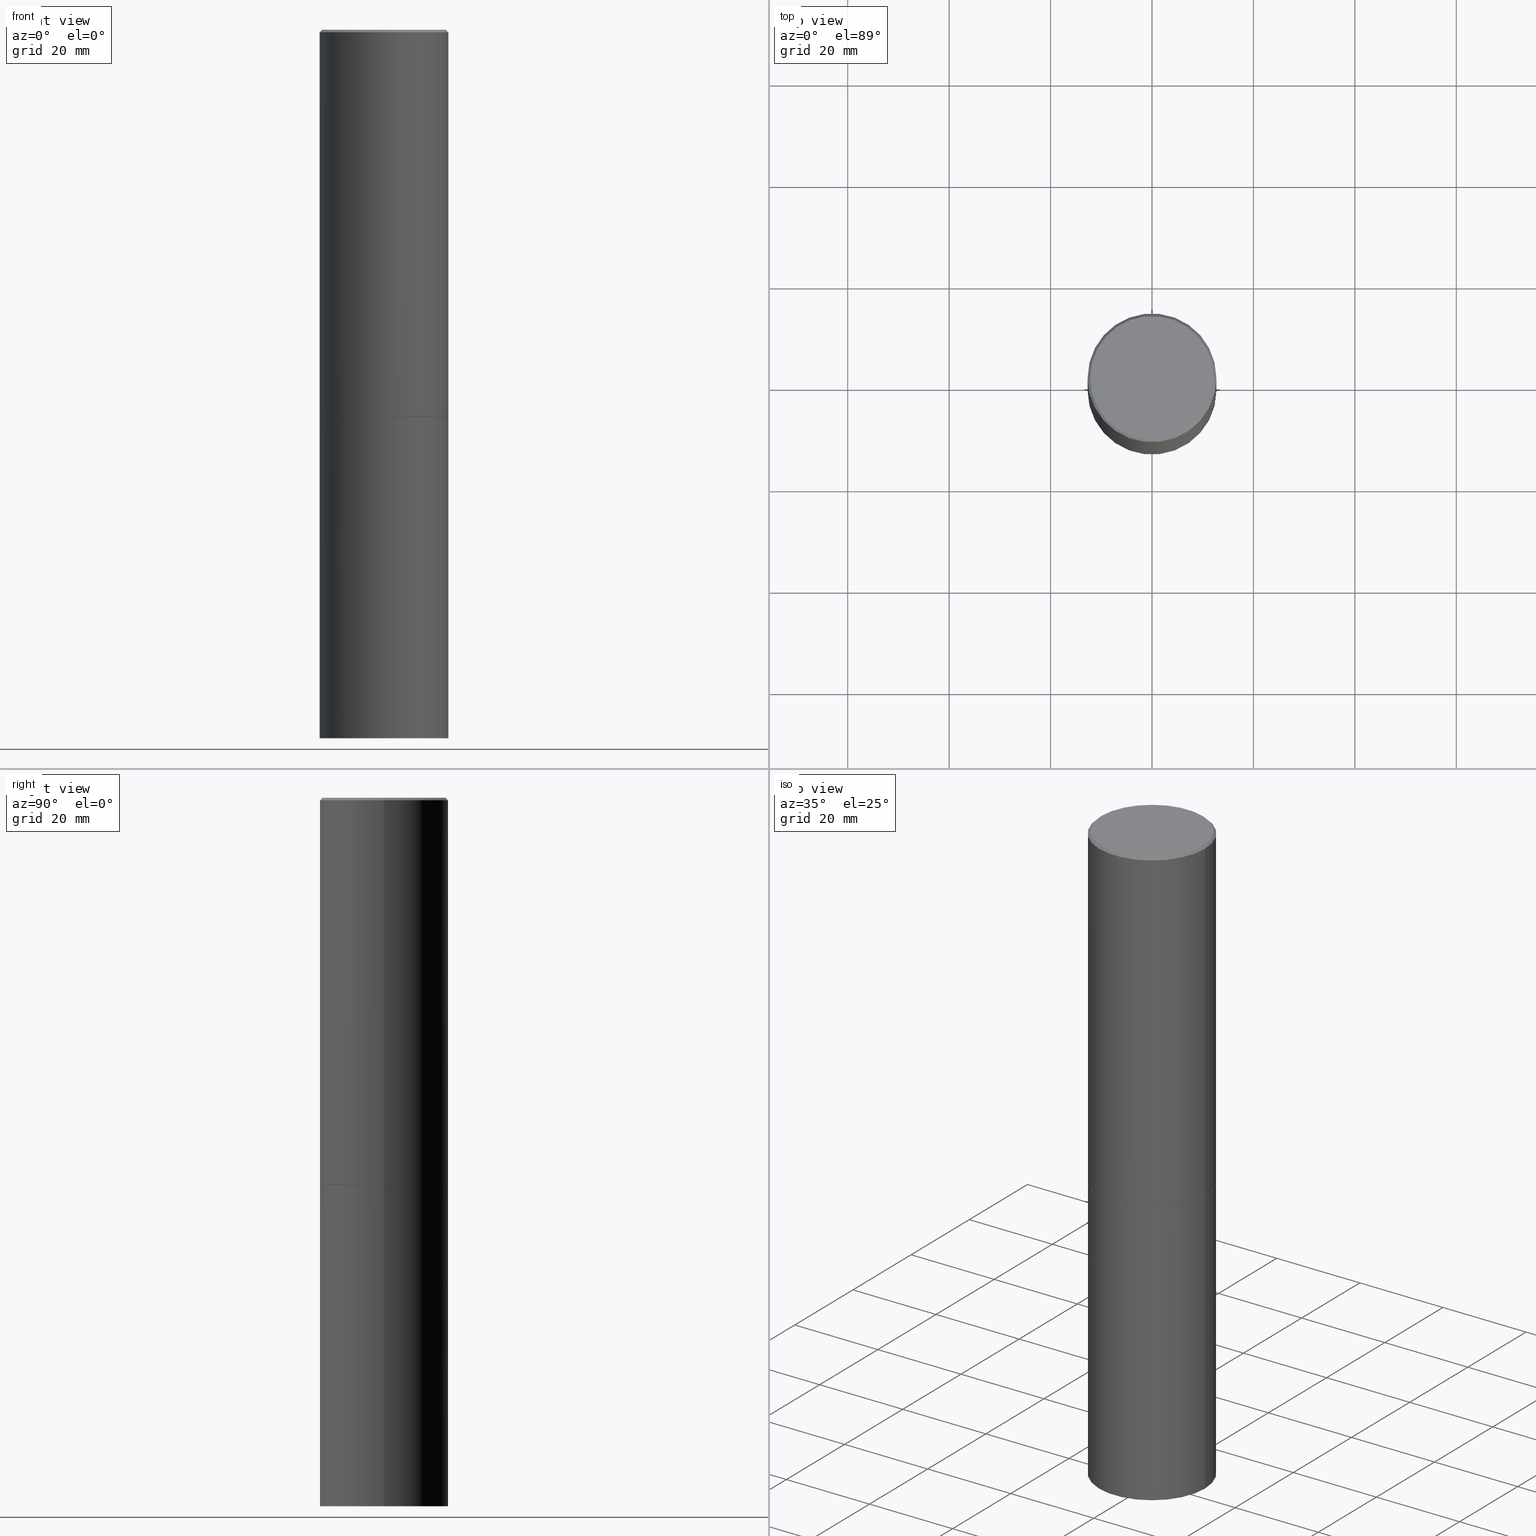
[diagram: canonical four-view strip — front | top / right | iso, engineering-drawing reading convention]
A machine part, canonical four-view strip (front | top / right | iso — engineering-drawing reading convention). The complete STEP part file that produces these views, byte-faithful:
ISO-10303-21;
HEADER;
FILE_DESCRIPTION (( 'STEP AP203' ),
    '1' );
FILE_NAME ('77461.STEP',
    '2024-05-03T15:07:08',
    ( '' ),
    ( '' ),
    'SwSTEP 2.0',
    'SolidWorks 2023',
    '' );
FILE_SCHEMA (( 'CONFIG_CONTROL_DESIGN' ));
ENDSEC;

DATA;
#1 = APPLICATION_CONTEXT ( 'configuration controlled 3d designs of mechanical parts and assemblies' ) ;
#2 = MANIFOLD_SOLID_BREP ( 'Body-Move/Copy2[1]', #17 ) ;
#3 = APPROVAL_DATE_TIME ( #140, #156 ) ;
#4 = ORIENTED_EDGE ( 'NONE', *, *, #120, .F. ) ;
#5 = EDGE_CURVE ( 'NONE', #313, #55, #286, .T. ) ;
#6 = ORIENTED_EDGE ( 'NONE', *, *, #277, .T. ) ;
#7 = AXIS2_PLACEMENT_3D ( 'NONE', #135, #247, #75 ) ;
#8 = VERTEX_POINT ( 'NONE', #124 ) ;
#9 = DIRECTION ( 'NONE',  ( 1.000000000000000000, -6.982962677686266711E-15, 4.876176775795935793E-29 ) ) ;
#10 = DIRECTION ( 'NONE',  ( 1.000000000000000000, -6.982962677686262766E-15, 0.000000000000000000 ) ) ;
#11 = CARTESIAN_POINT ( 'NONE',  ( 7.336406418555408669E-29, -1.047444401652943478E-14, -2.999999999999999556 ) ) ;
#12 = CC_DESIGN_PERSON_AND_ORGANIZATION_ASSIGNMENT ( #158, #190, ( #53 ) ) ;
#13 = LOCAL_TIME ( 11, 7, 8.000000000000000000, #150 ) ;
#14 = DIRECTION ( 'NONE',  ( -2.445468806185136597E-29, 3.491481338843145583E-15, 1.000000000000000000 ) ) ;
#15 = FACE_OUTER_BOUND ( 'NONE', #115, .T. ) ;
#16 = ADVANCED_FACE ( 'NONE', ( #239 ), #212, .F. ) ;
#17 = CLOSED_SHELL ( 'NONE', ( #162, #249, #242, #175 ) ) ;
#18 = DIRECTION ( 'NONE',  ( 1.000000000000000000, -6.982962677686265922E-15, 4.876176775795935793E-29 ) ) ;
#19 = CONICAL_SURFACE ( 'NONE', #363, 0.4989999999999999991, 0.7853981633978239785 ) ;
#20 = APPROVAL_PERSON_ORGANIZATION ( #37, #223, #153 ) ;
#21 = CC_DESIGN_PERSON_AND_ORGANIZATION_ASSIGNMENT ( #307, #169, ( #227 ) ) ;
#22 = CARTESIAN_POINT ( 'NONE',  ( 0.5000000000000000000, -1.396592535537256813E-14, -2.999999999999999556 ) ) ;
#23 = VECTOR ( 'NONE', #32, 39.37007874015748854 ) ;
#24 = DIRECTION ( 'NONE',  ( 0.000000000000000000, 0.000000000000000000, 1.000000000000000000 ) ) ;
#25 = CALENDAR_DATE ( 2024, 3, 5 ) ;
#26 = ORIENTED_EDGE ( 'NONE', *, *, #310, .T. ) ;
#27 = CARTESIAN_POINT ( 'NONE',  ( -0.4999999999999998335, 3.552713678800499746E-15, -2.459467545127452330E-29 ) ) ;
#28 = EDGE_LOOP ( 'NONE', ( #318, #26, #116, #197 ) ) ;
#29 = VERTEX_POINT ( 'NONE', #67 ) ;
#30 = CIRCLE ( 'NONE', #305, 0.4999999999999997224 ) ;
#31 = ORIENTED_EDGE ( 'NONE', *, *, #63, .F. ) ;
#32 = DIRECTION ( 'NONE',  ( 0.7071067811868130271, -2.468850131085038979E-15, 0.7071067811862817853 ) ) ;
#33 = CARTESIAN_POINT ( 'NONE',  ( 7.336406418555408669E-29, -1.047444401652943478E-14, -2.999999999999999556 ) ) ;
#34 = EDGE_CURVE ( 'NONE', #259, #313, #110, .T. ) ;
#35 = DIRECTION ( 'NONE',  ( 2.445468806185136597E-29, -3.491481338843145583E-15, -1.000000000000000000 ) ) ;
#36 = COORDINATED_UNIVERSAL_TIME_OFFSET ( 5, 0, .BEHIND. ) ;
#37 = PERSON_AND_ORGANIZATION ( #74, #278 ) ;
#38 = EDGE_CURVE ( 'NONE', #145, #359, #78, .T. ) ;
#39 =( CONVERSION_BASED_UNIT ( 'INCH', #322 ) LENGTH_UNIT ( ) NAMED_UNIT ( #42 ) );
#40 = COORDINATED_UNIVERSAL_TIME_OFFSET ( 5, 0, .BEHIND. ) ;
#41 = DATE_AND_TIME ( #25, #13 ) ;
#42 = DIMENSIONAL_EXPONENTS ( 1.000000000000000000, 0.000000000000000000, 0.000000000000000000, 0.000000000000000000, 0.000000000000000000, 0.000000000000000000, 0.000000000000000000 ) ;
#43 = PERSON_AND_ORGANIZATION_ROLE ( 'creator' ) ;
#44 = CIRCLE ( 'NONE', #137, 0.5000000000000000000 ) ;
#45 = DIRECTION ( 'NONE',  ( 1.000000000000000000, -6.982962677686266711E-15, 0.000000000000000000 ) ) ;
#46 = EDGE_LOOP ( 'NONE', ( #260, #4 ) ) ;
#47 = CC_DESIGN_PERSON_AND_ORGANIZATION_ASSIGNMENT ( #71, #358, ( #287 ) ) ;
#48 = EDGE_LOOP ( 'NONE', ( #6, #225, #342, #79 ) ) ;
#49 = ORIENTED_EDGE ( 'NONE', *, *, #291, .T. ) ;
#50 = ADVANCED_FACE ( 'NONE', ( #269 ), #301, .F. ) ;
#51 = CARTESIAN_POINT ( 'NONE',  ( 7.336406418555408669E-29, -1.047444401652943478E-14, -2.999999999999999556 ) ) ;
#52 = ORIENTED_EDGE ( 'NONE', *, *, #180, .F. ) ;
#53 = SECURITY_CLASSIFICATION ( '', '', #270 ) ;
#54 = DIRECTION ( 'NONE',  ( -2.445468806185136877E-29, 3.491481338843145188E-15, 1.000000000000000000 ) ) ;
#55 = VERTEX_POINT ( 'NONE', #272 ) ;
#56 = APPLICATION_CONTEXT ( 'configuration controlled 3d designs of mechanical parts and assemblies' ) ;
#57 = FACE_OUTER_BOUND ( 'NONE', #204, .T. ) ;
#58 = CARTESIAN_POINT ( 'NONE',  ( -0.4999999999999997224, 3.421651712066268085E-15, -0.02000000000000013572 ) ) ;
#59 = VERTEX_POINT ( 'NONE', #187 ) ;
#60 = FACE_OUTER_BOUND ( 'NONE', #106, .T. ) ;
#61 = AXIS2_PLACEMENT_3D ( 'NONE', #161, #132, #73 ) ;
#62 = AXIS2_PLACEMENT_3D ( 'NONE', #177, #179, #284 ) ;
#63 = EDGE_CURVE ( 'NONE', #259, #123, #171, .T. ) ;
#64 = ORIENTED_EDGE ( 'NONE', *, *, #149, .T. ) ;
#65 = DIRECTION ( 'NONE',  ( 1.000000000000000000, -6.982962677686262766E-15, 0.000000000000000000 ) ) ;
#66 = ADVANCED_FACE ( 'NONE', ( #365 ), #163, .T. ) ;
#67 = CARTESIAN_POINT ( 'NONE',  ( -0.4989999999999999991, -6.923537310738314819E-15, -2.999999999999999556 ) ) ;
#68 = FACE_OUTER_BOUND ( 'NONE', #288, .T. ) ;
#69 = CIRCLE ( 'NONE', #152, 0.4799999999999995937 ) ;
#70 = AXIS2_PLACEMENT_3D ( 'NONE', #360, #221, #189 ) ;
#71 = PERSON_AND_ORGANIZATION ( #74, #278 ) ;
#72 = CARTESIAN_POINT ( 'NONE',  ( -0.5000000000000000000, 3.552713678800500929E-15, -2.459467545127452891E-29 ) ) ;
#73 = DIRECTION ( 'NONE',  ( -1.000000000000000000, 6.982962677686265922E-15, -4.876176775795935793E-29 ) ) ;
#74 = PERSON ( 'UNSPECIFIED', 'UNSPECIFIED', 'UNSPECIFIED', ('UNSPECIFIED'), ('UNSPECIFIED'), ('UNSPECIFIED') ) ;
#75 = DIRECTION ( 'NONE',  ( -1.000000000000000000, 6.982962677686265922E-15, -4.876176775795935793E-29 ) ) ;
#76 = DIRECTION ( 'NONE',  ( -2.445468806185136597E-29, 3.491481338843145583E-15, 1.000000000000000000 ) ) ;
#77 = AXIS2_PLACEMENT_3D ( 'NONE', #82, #330, #198 ) ;
#78 = LINE ( 'NONE', #155, #141 ) ;
#79 = ORIENTED_EDGE ( 'NONE', *, *, #149, .F. ) ;
#80 = ORIENTED_EDGE ( 'NONE', *, *, #194, .T. ) ;
#81 = PLANE ( 'NONE',  #70 ) ;
#82 = CARTESIAN_POINT ( 'NONE',  ( 0.000000000000000000, 0.000000000000000000, 0.000000000000000000 ) ) ;
#83 = FACE_OUTER_BOUND ( 'NONE', #95, .T. ) ;
#84 =( NAMED_UNIT ( * ) PLANE_ANGLE_UNIT ( ) SI_UNIT ( $, .RADIAN. ) );
#85 = DIRECTION ( 'NONE',  ( 2.445468806185136597E-29, -3.491481338843145583E-15, -1.000000000000000000 ) ) ;
#86 = ORIENTED_EDGE ( 'NONE', *, *, #180, .T. ) ;
#87 = ORIENTED_EDGE ( 'NONE', *, *, #127, .F. ) ;
#88 = AXIS2_PLACEMENT_3D ( 'NONE', #237, #347, #210 ) ;
#89 = ORIENTED_EDGE ( 'NONE', *, *, #134, .F. ) ;
#90 = EDGE_LOOP ( 'NONE', ( #87, #97, #49, #348 ) ) ;
#91 = DIRECTION ( 'NONE',  ( 1.000000000000000000, -6.982962677686266711E-15, 4.876176775795935793E-29 ) ) ;
#92 = ORIENTED_EDGE ( 'NONE', *, *, #303, .F. ) ;
#93 = DIRECTION ( 'NONE',  ( 1.000000000000000000, -6.982962677686266711E-15, 4.876036955247133327E-29 ) ) ;
#94 = DIRECTION ( 'NONE',  ( 1.000000000000000000, -6.982962677686266711E-15, 0.000000000000000000 ) ) ;
#95 = EDGE_LOOP ( 'NONE', ( #254, #232, #64, #255 ) ) ;
#96 = CARTESIAN_POINT ( 'NONE',  ( 0.4999999999999998335, -3.491481338843132566E-15, 2.438088387897967336E-29 ) ) ;
#97 = ORIENTED_EDGE ( 'NONE', *, *, #134, .T. ) ;
#98 = CARTESIAN_POINT ( 'NONE',  ( -3.131554243005659264E-46, 4.471029511141341874E-32, 1.280553747030123384E-17 ) ) ;
#99 = DIRECTION ( 'NONE',  ( -2.445468806185136597E-29, 3.491481338843145583E-15, 1.000000000000000000 ) ) ;
#100 = ORIENTED_EDGE ( 'NONE', *, *, #273, .T. ) ;
#101 = VECTOR ( 'NONE', #122, 39.37007874015748143 ) ;
#102 = DIRECTION ( 'NONE',  ( -2.445468806185136597E-29, 3.491481338843145583E-15, 1.000000000000000000 ) ) ;
#103 = EDGE_CURVE ( 'NONE', #59, #359, #312, .T. ) ;
#104 = DIRECTION ( 'NONE',  ( -2.445468806185136597E-29, 3.491481338843145583E-15, 1.000000000000000000 ) ) ;
#105 = DIRECTION ( 'NONE',  ( -0.7071067811865471286, 2.468850131082252722E-15, -0.7071067811865479058 ) ) ;
#106 = EDGE_LOOP ( 'NONE', ( #80, #100, #52, #211 ) ) ;
#107 = ORIENTED_EDGE ( 'NONE', *, *, #103, .T. ) ;
#108 = APPROVAL_STATUS ( 'not_yet_approved' ) ;
#109 = EDGE_CURVE ( 'NONE', #29, #111, #139, .T. ) ;
#110 = LINE ( 'NONE', #295, #321 ) ;
#111 = VERTEX_POINT ( 'NONE', #334 ) ;
#112 = ADVANCED_FACE ( 'NONE', ( #83 ), #19, .T. ) ;
#113 = AXIS2_PLACEMENT_3D ( 'NONE', #157, #304, #167 ) ;
#114 = FACE_OUTER_BOUND ( 'NONE', #48, .T. ) ;
#115 = EDGE_LOOP ( 'NONE', ( #257, #281, #340, #176 ) ) ;
#116 = ORIENTED_EDGE ( 'NONE', *, *, #329, .T. ) ;
#117 =( GEOMETRIC_REPRESENTATION_CONTEXT ( 3 ) GLOBAL_UNCERTAINTY_ASSIGNED_CONTEXT ( ( #274 ) ) GLOBAL_UNIT_ASSIGNED_CONTEXT ( ( #39, #84, #203 ) ) REPRESENTATION_CONTEXT ( 'NONE', 'WORKASPACE' ) );
#118 = DATE_AND_TIME ( #292, #178 ) ;
#119 = CALENDAR_DATE ( 2024, 3, 5 ) ;
#120 = EDGE_CURVE ( 'NONE', #29, #8, #125, .T. ) ;
#121 = DIRECTION ( 'NONE',  ( 1.000000000000000000, -6.982962677686269077E-15, 0.000000000000000000 ) ) ;
#122 = DIRECTION ( 'NONE',  ( -2.445468806185136877E-29, 3.491481338843145188E-15, 1.000000000000000000 ) ) ;
#123 = VERTEX_POINT ( 'NONE', #240 ) ;
#124 = CARTESIAN_POINT ( 'NONE',  ( 0.4989999999999999991, -1.395894239269488369E-14, -2.999999999999999556 ) ) ;
#125 = CIRCLE ( 'NONE', #192, 0.4989999999999999991 ) ;
#126 = APPROVAL_PERSON_ORGANIZATION ( #164, #156, #128 ) ;
#127 = EDGE_CURVE ( 'NONE', #123, #259, #69, .T. ) ;
#128 = APPROVAL_ROLE ( '' ) ;
#129 = DIRECTION ( 'NONE',  ( -2.445468806185136597E-29, 3.491481338843145583E-15, 1.000000000000000000 ) ) ;
#130 = DIRECTION ( 'NONE',  ( 0.7071067811865471286, -7.319954787623254468E-15, -0.7071067811865479058 ) ) ;
#131 = APPROVAL_DATE_TIME ( #297, #263 ) ;
#132 = DIRECTION ( 'NONE',  ( 2.438088387897960049E-29, -3.491481338843145188E-15, -1.000000000000000000 ) ) ;
#133 = LOCAL_TIME ( 11, 7, 8.000000000000000000, #320 ) ;
#134 = EDGE_CURVE ( 'NONE', #123, #55, #319, .T. ) ;
#135 = CARTESIAN_POINT ( 'NONE',  ( 3.491481338843206325E-15, 0.4999999999999895639, -3.000000000000001332 ) ) ;
#136 = VECTOR ( 'NONE', #130, 39.37007874015748143 ) ;
#137 = AXIS2_PLACEMENT_3D ( 'NONE', #265, #14, #65 ) ;
#138 = CARTESIAN_POINT ( 'NONE',  ( 7.336406418555408669E-29, -1.047444401652943478E-14, -2.999999999999999556 ) ) ;
#139 = LINE ( 'NONE', #276, #243 ) ;
#140 = DATE_AND_TIME ( #119, #133 ) ;
#141 = VECTOR ( 'NONE', #195, 39.37007874015748143 ) ;
#142 = CIRCLE ( 'NONE', #88, 0.5000000000000000000 ) ;
#143 = DIRECTION ( 'NONE',  ( -2.445468806185136597E-29, 3.491481338843145583E-15, 1.000000000000000000 ) ) ;
#144 = COORDINATED_UNIVERSAL_TIME_OFFSET ( 5, 0, .BEHIND. ) ;
#145 = VERTEX_POINT ( 'NONE', #236 ) ;
#146 = EDGE_LOOP ( 'NONE', ( #345, #92 ) ) ;
#147 = CARTESIAN_POINT ( 'NONE',  ( 0.000000000000000000, 0.000000000000000000, 0.000000000000000000 ) ) ;
#148 = LINE ( 'NONE', #27, #101 ) ;
#149 = EDGE_CURVE ( 'NONE', #8, #290, #182, .T. ) ;
#150 = COORDINATED_UNIVERSAL_TIME_OFFSET ( 5, 0, .BEHIND. ) ;
#151 = DIRECTION ( 'NONE',  ( -1.000000000000000000, 6.982962677686266711E-15, 0.000000000000000000 ) ) ;
#152 = AXIS2_PLACEMENT_3D ( 'NONE', #98, #102, #93 ) ;
#153 = APPROVAL_ROLE ( '' ) ;
#154 = APPROVAL_STATUS ( 'not_yet_approved' ) ;
#155 = CARTESIAN_POINT ( 'NONE',  ( 0.5000000000000000000, -3.491481338843133355E-15, 2.438088387897967896E-29 ) ) ;
#156 = APPROVAL ( #154, 'UNSPECIFIED' ) ;
#157 = CARTESIAN_POINT ( 'NONE',  ( -3.131554243005659264E-46, 4.471029511141341874E-32, 1.280553747030123384E-17 ) ) ;
#158 = PERSON_AND_ORGANIZATION ( #74, #278 ) ;
#159 = AXIS2_PLACEMENT_3D ( 'NONE', #138, #200, #306 ) ;
#160 = CARTESIAN_POINT ( 'NONE',  ( -0.4799999999999995937, 3.386736898677836436E-15, 1.280553747027767124E-17 ) ) ;
#161 = CARTESIAN_POINT ( 'NONE',  ( 3.351822085289404787E-15, 0.4799999999999995937, -1.669508273909557867E-15 ) ) ;
#162 = ADVANCED_FACE ( 'NONE', ( #60 ), #289, .T. ) ;
#163 = CYLINDRICAL_SURFACE ( 'NONE', #77, 0.4999999999999998335 ) ;
#164 = PERSON_AND_ORGANIZATION ( #74, #278 ) ;
#165 = AXIS2_PLACEMENT_3D ( 'NONE', #231, #24, #256 ) ;
#166 = ADVANCED_FACE ( 'NONE', ( #68 ), #199, .T. ) ;
#167 = DIRECTION ( 'NONE',  ( 1.000000000000000000, -6.982962677686266711E-15, 4.876036955247133327E-29 ) ) ;
#168 = PRODUCT_RELATED_PRODUCT_CATEGORY ( 'detail', '', ( #362 ) ) ;
#169 = PERSON_AND_ORGANIZATION_ROLE ( 'creator' ) ;
#170 = DIRECTION ( 'NONE',  ( 1.000000000000000000, -6.982962677686269077E-15, 0.000000000000000000 ) ) ;
#171 = CIRCLE ( 'NONE', #113, 0.4799999999999995937 ) ;
#172 = CC_DESIGN_APPROVAL ( #263, ( #287 ) ) ;
#173 = DIRECTION ( 'NONE',  ( -1.000000000000000000, 6.982962677686266711E-15, 0.000000000000000000 ) ) ;
#174 = FACE_OUTER_BOUND ( 'NONE', #90, .T. ) ;
#175 = ADVANCED_FACE ( 'NONE', ( #15 ), #353, .T. ) ;
#176 = ORIENTED_EDGE ( 'NONE', *, *, #103, .F. ) ;
#177 = CARTESIAN_POINT ( 'NONE',  ( 0.000000000000000000, 0.000000000000000000, 0.000000000000000000 ) ) ;
#178 = LOCAL_TIME ( 11, 7, 8.000000000000000000, #36 ) ;
#179 = DIRECTION ( 'NONE',  ( -2.445468806185136597E-29, 3.491481338843145583E-15, 1.000000000000000000 ) ) ;
#180 = EDGE_CURVE ( 'NONE', #359, #59, #332, .T. ) ;
#181 = CARTESIAN_POINT ( 'NONE',  ( 4.890937612370306439E-31, -6.982962677686338448E-17, -0.02000000000000013572 ) ) ;
#182 = LINE ( 'NONE', #343, #23 ) ;
#183 = DIRECTION ( 'NONE',  ( -2.445468806185136597E-29, 3.491481338843145583E-15, 1.000000000000000000 ) ) ;
#184 = MECHANICAL_CONTEXT ( 'NONE', #1, 'mechanical' ) ;
#185 = LOCAL_TIME ( 11, 7, 8.000000000000000000, #144 ) ;
#186 = PERSON_AND_ORGANIZATION ( #74, #278 ) ;
#187 = CARTESIAN_POINT ( 'NONE',  ( -0.5000000000000000000, -1.128608201128286632E-14, -2.999999999999999556 ) ) ;
#188 = APPROVAL_ROLE ( '' ) ;
#189 = DIRECTION ( 'NONE',  ( -1.000000000000000000, 6.982962677686265922E-15, -4.876176775795935793E-29 ) ) ;
#190 = PERSON_AND_ORGANIZATION_ROLE ( 'classification_officer' ) ;
#191 = DIRECTION ( 'NONE',  ( 1.000000000000000000, -6.982962677686266711E-15, 0.000000000000000000 ) ) ;
#192 = AXIS2_PLACEMENT_3D ( 'NONE', #11, #346, #121 ) ;
#193 = AXIS2_PLACEMENT_3D ( 'NONE', #267, #129, #355 ) ;
#194 = EDGE_CURVE ( 'NONE', #145, #238, #245, .T. ) ;
#195 = DIRECTION ( 'NONE',  ( -2.445468806185136877E-29, 3.491481338843145188E-15, 1.000000000000000000 ) ) ;
#196 = APPLICATION_PROTOCOL_DEFINITION ( 'international standard', 'config_control_design', 1994, #56 ) ;
#197 = ORIENTED_EDGE ( 'NONE', *, *, #5, .F. ) ;
#198 = DIRECTION ( 'NONE',  ( 1.000000000000000000, -6.982962677686267499E-15, 4.876176775795936353E-29 ) ) ;
#199 = CONICAL_SURFACE ( 'NONE', #215, 0.4999999999999997224, 0.7853981633974477239 ) ;
#200 = DIRECTION ( 'NONE',  ( -2.445468806185136597E-29, 3.491481338843145583E-15, 1.000000000000000000 ) ) ;
#201 = EDGE_CURVE ( 'NONE', #111, #313, #148, .T. ) ;
#202 = CARTESIAN_POINT ( 'NONE',  ( 4.890937612370306439E-31, -6.982962677686338448E-17, -0.02000000000000013572 ) ) ;
#203 =( NAMED_UNIT ( * ) SI_UNIT ( $, .STERADIAN. ) SOLID_ANGLE_UNIT ( ) );
#204 = EDGE_LOOP ( 'NONE', ( #335, #315, #283, #207 ) ) ;
#205 = ADVANCED_FACE ( 'NONE', ( #57 ), #234, .T. ) ;
#206 = CARTESIAN_POINT ( 'NONE',  ( 1.345007843401824904E-28, -1.920314736363729972E-14, -5.500000000000000000 ) ) ;
#207 = ORIENTED_EDGE ( 'NONE', *, *, #329, .F. ) ;
#208 = DIRECTION ( 'NONE',  ( -2.445468806185136597E-29, 3.491481338843145583E-15, 1.000000000000000000 ) ) ;
#209 = AXIS2_PLACEMENT_3D ( 'NONE', #33, #99, #94 ) ;
#210 = DIRECTION ( 'NONE',  ( 1.000000000000000000, -6.982962677686266711E-15, 0.000000000000000000 ) ) ;
#211 = ORIENTED_EDGE ( 'NONE', *, *, #38, .F. ) ;
#212 = PLANE ( 'NONE',  #293 ) ;
#213 = FACE_OUTER_BOUND ( 'NONE', #309, .T. ) ;
#214 = PERSON_AND_ORGANIZATION ( #74, #278 ) ;
#215 = AXIS2_PLACEMENT_3D ( 'NONE', #181, #35, #151 ) ;
#216 = CC_DESIGN_APPROVAL ( #156, ( #227 ) ) ;
#217 = PLANE ( 'NONE',  #7 ) ;
#218 = CARTESIAN_POINT ( 'NONE',  ( 4.890937612370306439E-31, -6.982962677686338448E-17, -0.02000000000000013572 ) ) ;
#219 = APPROVAL_STATUS ( 'not_yet_approved' ) ;
#220 = EDGE_CURVE ( 'NONE', #290, #111, #142, .T. ) ;
#221 = DIRECTION ( 'NONE',  ( 2.438088387897960049E-29, -3.491481338843145188E-15, -1.000000000000000000 ) ) ;
#222 = AXIS2_PLACEMENT_3D ( 'NONE', #206, #208, #10 ) ;
#223 = APPROVAL ( #219, 'UNSPECIFIED' ) ;
#224 = PERSON_AND_ORGANIZATION_ROLE ( 'design_owner' ) ;
#225 = ORIENTED_EDGE ( 'NONE', *, *, #109, .T. ) ;
#226 = PRODUCT_DEFINITION_SHAPE ( 'NONE', 'NONE',  #227 ) ;
#227 = PRODUCT_DEFINITION ( 'UNKNOWN', '', #287, #228 ) ;
#228 = DESIGN_CONTEXT ( 'detailed design', #56, 'design' ) ;
#229 = DIRECTION ( 'NONE',  ( -0.7071067811868130271, 7.493145998871311837E-15, 0.7071067811862817853 ) ) ;
#230 = CARTESIAN_POINT ( 'NONE',  ( 4.890937612370306439E-31, -6.982962677686338448E-17, -0.02000000000000013572 ) ) ;
#231 = CARTESIAN_POINT ( 'NONE',  ( 0.000000000000000000, 0.000000000000000000, 0.000000000000000000 ) ) ;
#232 = ORIENTED_EDGE ( 'NONE', *, *, #120, .T. ) ;
#233 = CC_DESIGN_SECURITY_CLASSIFICATION ( #53, ( #287 ) ) ;
#234 = CYLINDRICAL_SURFACE ( 'NONE', #62, 0.4999999999999998335 ) ;
#235 = CARTESIAN_POINT ( 'NONE',  ( 7.333960949749226429E-29, -1.047095253519059492E-14, -2.999000000000000554 ) ) ;
#236 = CARTESIAN_POINT ( 'NONE',  ( 0.5000000000000000000, -2.269462870248043307E-14, -5.500000000000000000 ) ) ;
#237 = CARTESIAN_POINT ( 'NONE',  ( 7.333960949749226429E-29, -1.047095253519059492E-14, -2.999000000000000554 ) ) ;
#238 = VERTEX_POINT ( 'NONE', #351 ) ;
#239 = FACE_OUTER_BOUND ( 'NONE', #46, .T. ) ;
#240 = CARTESIAN_POINT ( 'NONE',  ( 0.4799999999999995937, -3.396558832296480127E-15, 1.280553747032483033E-17 ) ) ;
#241 = DATE_TIME_ROLE ( 'creation_date' ) ;
#242 = ADVANCED_FACE ( 'NONE', ( #213 ), #217, .F. ) ;
#243 = VECTOR ( 'NONE', #229, 39.37007874015748854 ) ;
#244 = CALENDAR_DATE ( 2024, 3, 5 ) ;
#245 = CIRCLE ( 'NONE', #222, 0.5000000000000000000 ) ;
#246 = CARTESIAN_POINT ( 'NONE',  ( 7.336406418555408669E-29, -1.047444401652943478E-14, -2.999999999999999556 ) ) ;
#247 = DIRECTION ( 'NONE',  ( 2.438088387897960049E-29, -3.491481338843145188E-15, -1.000000000000000000 ) ) ;
#248 = MANIFOLD_SOLID_BREP ( 'Body-Move/Copy2[2]', #264 ) ;
#249 = ADVANCED_FACE ( 'NONE', ( #364 ), #81, .T. ) ;
#250 = ORIENTED_EDGE ( 'NONE', *, *, #63, .T. ) ;
#251 = DIRECTION ( 'NONE',  ( -2.445468806185136597E-29, 3.491481338843145583E-15, 1.000000000000000000 ) ) ;
#252 = VECTOR ( 'NONE', #300, 39.37007874015748143 ) ;
#253 = DIRECTION ( 'NONE',  ( -2.438088387897960049E-29, 3.491481338843145188E-15, 1.000000000000000000 ) ) ;
#254 = ORIENTED_EDGE ( 'NONE', *, *, #109, .F. ) ;
#255 = ORIENTED_EDGE ( 'NONE', *, *, #310, .F. ) ;
#256 = DIRECTION ( 'NONE',  ( 1.000000000000000000, 0.000000000000000000, 0.000000000000000000 ) ) ;
#257 = ORIENTED_EDGE ( 'NONE', *, *, #273, .F. ) ;
#258 = CC_DESIGN_DATE_AND_TIME_ASSIGNMENT ( #118, #352, ( #53 ) ) ;
#259 = VERTEX_POINT ( 'NONE', #160 ) ;
#260 = ORIENTED_EDGE ( 'NONE', *, *, #277, .F. ) ;
#261 = DATE_AND_TIME ( #354, #266 ) ;
#262 = CC_DESIGN_APPROVAL ( #223, ( #53 ) ) ;
#263 = APPROVAL ( #108, 'UNSPECIFIED' ) ;
#264 = CLOSED_SHELL ( 'NONE', ( #361, #205, #338, #166, #66, #112, #16, #50 ) ) ;
#265 = CARTESIAN_POINT ( 'NONE',  ( 1.345007843401824904E-28, -1.920314736363729972E-14, -5.500000000000000000 ) ) ;
#266 = LOCAL_TIME ( 11, 7, 8.000000000000000000, #40 ) ;
#267 = CARTESIAN_POINT ( 'NONE',  ( 7.336406418555408669E-29, -1.047444401652943478E-14, -2.999999999999999556 ) ) ;
#268 = SHAPE_DEFINITION_REPRESENTATION ( #226, #271 ) ;
#269 = FACE_OUTER_BOUND ( 'NONE', #282, .T. ) ;
#270 = SECURITY_CLASSIFICATION_LEVEL ( 'unclassified' ) ;
#271 = ADVANCED_BREP_SHAPE_REPRESENTATION ( '77461', ( #2, #248, #165 ), #117 ) ;
#272 = CARTESIAN_POINT ( 'NONE',  ( 0.4999999999999997224, -3.500078625662627502E-15, -0.02000000000000013572 ) ) ;
#273 = EDGE_CURVE ( 'NONE', #238, #59, #323, .T. ) ;
#274 = UNCERTAINTY_MEASURE_WITH_UNIT (LENGTH_MEASURE( 1.000000000000000082E-05 ), #39, 'distance_accuracy_value', 'NONE');
#275 = CARTESIAN_POINT ( 'NONE',  ( 0.5000000000000000000, -1.396243387403372828E-14, -2.999000000000000554 ) ) ;
#276 = CARTESIAN_POINT ( 'NONE',  ( -0.4989999999999999991, -6.928835765086534855E-15, -2.999999999999999556 ) ) ;
#277 = EDGE_CURVE ( 'NONE', #8, #29, #350, .T. ) ;
#278 = ORGANIZATION ( 'UNSPECIFIED', 'UNSPECIFIED', '' ) ;
#279 = CC_DESIGN_PERSON_AND_ORGANIZATION_ASSIGNMENT ( #186, #43, ( #287 ) ) ;
#280 = ORIENTED_EDGE ( 'NONE', *, *, #34, .T. ) ;
#281 = ORIENTED_EDGE ( 'NONE', *, *, #303, .T. ) ;
#282 = EDGE_LOOP ( 'NONE', ( #250, #324 ) ) ;
#283 = ORIENTED_EDGE ( 'NONE', *, *, #291, .F. ) ;
#284 = DIRECTION ( 'NONE',  ( 1.000000000000000000, -6.982962677686267499E-15, 4.876176775795936353E-29 ) ) ;
#285 = CC_DESIGN_PERSON_AND_ORGANIZATION_ASSIGNMENT ( #331, #224, ( #362 ) ) ;
#286 = CIRCLE ( 'NONE', #327, 0.4999999999999997224 ) ;
#287 = PRODUCT_DEFINITION_FORMATION_WITH_SPECIFIED_SOURCE ( 'ANY', '', #362, .NOT_KNOWN. ) ;
#288 = EDGE_LOOP ( 'NONE', ( #89, #31, #280, #339 ) ) ;
#289 = CYLINDRICAL_SURFACE ( 'NONE', #356, 0.5000000000000000000 ) ;
#290 = VERTEX_POINT ( 'NONE', #275 ) ;
#291 = EDGE_CURVE ( 'NONE', #55, #313, #30, .T. ) ;
#292 = CALENDAR_DATE ( 2024, 3, 5 ) ;
#293 = AXIS2_PLACEMENT_3D ( 'NONE', #316, #253, #18 ) ;
#294 = AXIS2_PLACEMENT_3D ( 'NONE', #230, #85, #173 ) ;
#295 = CARTESIAN_POINT ( 'NONE',  ( -0.4999999999999997224, 3.421651712066268085E-15, -0.02000000000000013572 ) ) ;
#296 = CARTESIAN_POINT ( 'NONE',  ( 0.000000000000000000, 0.000000000000000000, 0.000000000000000000 ) ) ;
#297 = DATE_AND_TIME ( #244, #185 ) ;
#298 =( LENGTH_UNIT ( ) NAMED_UNIT ( * ) SI_UNIT ( $, .METRE. ) );
#299 = APPROVAL_DATE_TIME ( #261, #223 ) ;
#300 = DIRECTION ( 'NONE',  ( -2.445468806185136877E-29, 3.491481338843145188E-15, 1.000000000000000000 ) ) ;
#301 = PLANE ( 'NONE',  #61 ) ;
#302 = CIRCLE ( 'NONE', #308, 0.5000000000000000000 ) ;
#303 = EDGE_CURVE ( 'NONE', #238, #145, #44, .T. ) ;
#304 = DIRECTION ( 'NONE',  ( -2.445468806185136597E-29, 3.491481338843145583E-15, 1.000000000000000000 ) ) ;
#305 = AXIS2_PLACEMENT_3D ( 'NONE', #202, #251, #191 ) ;
#306 = DIRECTION ( 'NONE',  ( 1.000000000000000000, -6.982962677686266711E-15, 0.000000000000000000 ) ) ;
#307 = PERSON_AND_ORGANIZATION ( #74, #278 ) ;
#308 = AXIS2_PLACEMENT_3D ( 'NONE', #235, #183, #341 ) ;
#309 = EDGE_LOOP ( 'NONE', ( #86, #107 ) ) ;
#310 = EDGE_CURVE ( 'NONE', #111, #290, #302, .T. ) ;
#311 = CARTESIAN_POINT ( 'NONE',  ( 0.4999999999999997224, -3.500078625662627502E-15, -0.02000000000000013572 ) ) ;
#312 = CIRCLE ( 'NONE', #159, 0.5000000000000000000 ) ;
#313 = VERTEX_POINT ( 'NONE', #58 ) ;
#314 = DIRECTION ( 'NONE',  ( -2.445468806185136597E-29, 3.491481338843145583E-15, 1.000000000000000000 ) ) ;
#315 = ORIENTED_EDGE ( 'NONE', *, *, #201, .T. ) ;
#316 = CARTESIAN_POINT ( 'NONE',  ( 7.336406418555408669E-29, -1.047444401652943478E-14, -2.999999999999999556 ) ) ;
#317 = DIRECTION ( 'NONE',  ( 1.000000000000000000, -6.982962677686269077E-15, 0.000000000000000000 ) ) ;
#318 = ORIENTED_EDGE ( 'NONE', *, *, #201, .F. ) ;
#319 = LINE ( 'NONE', #311, #136 ) ;
#320 = COORDINATED_UNIVERSAL_TIME_OFFSET ( 5, 0, .BEHIND. ) ;
#321 = VECTOR ( 'NONE', #105, 39.37007874015748143 ) ;
#322 = LENGTH_MEASURE_WITH_UNIT ( LENGTH_MEASURE( 0.02539999999999999897 ), #298 );
#323 = LINE ( 'NONE', #72, #252 ) ;
#324 = ORIENTED_EDGE ( 'NONE', *, *, #127, .T. ) ;
#325 = CC_DESIGN_DATE_AND_TIME_ASSIGNMENT ( #41, #241, ( #227 ) ) ;
#326 = DIRECTION ( 'NONE',  ( -2.445468806185136597E-29, 3.491481338843145583E-15, 1.000000000000000000 ) ) ;
#327 = AXIS2_PLACEMENT_3D ( 'NONE', #218, #76, #45 ) ;
#328 = APPROVAL_PERSON_ORGANIZATION ( #214, #263, #188 ) ;
#329 = EDGE_CURVE ( 'NONE', #290, #55, #344, .T. ) ;
#330 = DIRECTION ( 'NONE',  ( -2.445468806185136597E-29, 3.491481338843145583E-15, 1.000000000000000000 ) ) ;
#331 = PERSON_AND_ORGANIZATION ( #74, #278 ) ;
#332 = CIRCLE ( 'NONE', #209, 0.5000000000000000000 ) ;
#333 = VECTOR ( 'NONE', #54, 39.37007874015748143 ) ;
#334 = CARTESIAN_POINT ( 'NONE',  ( -0.5000000000000000000, -1.717677402183226998E-15, -2.999000000000000554 ) ) ;
#335 = ORIENTED_EDGE ( 'NONE', *, *, #220, .T. ) ;
#336 = APPLICATION_PROTOCOL_DEFINITION ( 'international standard', 'config_control_design', 1994, #1 ) ;
#337 = CONICAL_SURFACE ( 'NONE', #193, 0.4989999999999999991, 0.7853981633978239785 ) ;
#338 = ADVANCED_FACE ( 'NONE', ( #174 ), #349, .T. ) ;
#339 = ORIENTED_EDGE ( 'NONE', *, *, #5, .T. ) ;
#340 = ORIENTED_EDGE ( 'NONE', *, *, #38, .T. ) ;
#341 = DIRECTION ( 'NONE',  ( 1.000000000000000000, -6.982962677686266711E-15, 0.000000000000000000 ) ) ;
#342 = ORIENTED_EDGE ( 'NONE', *, *, #220, .F. ) ;
#343 = CARTESIAN_POINT ( 'NONE',  ( 0.4989999999999999991, -1.395894239269488369E-14, -2.999999999999999556 ) ) ;
#344 = LINE ( 'NONE', #96, #333 ) ;
#345 = ORIENTED_EDGE ( 'NONE', *, *, #194, .F. ) ;
#346 = DIRECTION ( 'NONE',  ( -2.445468806185136597E-29, 3.491481338843145583E-15, 1.000000000000000000 ) ) ;
#347 = DIRECTION ( 'NONE',  ( -2.445468806185136597E-29, 3.491481338843145583E-15, 1.000000000000000000 ) ) ;
#348 = ORIENTED_EDGE ( 'NONE', *, *, #34, .F. ) ;
#349 = CONICAL_SURFACE ( 'NONE', #294, 0.4999999999999997224, 0.7853981633974477239 ) ;
#350 = CIRCLE ( 'NONE', #357, 0.4989999999999999991 ) ;
#351 = CARTESIAN_POINT ( 'NONE',  ( -0.5000000000000000000, -1.128608201128286632E-14, -5.500000000000000000 ) ) ;
#352 = DATE_TIME_ROLE ( 'classification_date' ) ;
#353 = CYLINDRICAL_SURFACE ( 'NONE', #366, 0.5000000000000000000 ) ;
#354 = CALENDAR_DATE ( 2024, 3, 5 ) ;
#355 = DIRECTION ( 'NONE',  ( 1.000000000000000000, -6.982962677686269077E-15, 0.000000000000000000 ) ) ;
#356 = AXIS2_PLACEMENT_3D ( 'NONE', #147, #314, #9 ) ;
#357 = AXIS2_PLACEMENT_3D ( 'NONE', #246, #326, #170 ) ;
#358 = PERSON_AND_ORGANIZATION_ROLE ( 'design_supplier' ) ;
#359 = VERTEX_POINT ( 'NONE', #22 ) ;
#360 = CARTESIAN_POINT ( 'NONE',  ( 3.491481338843267462E-15, 0.4999999999999807931, -5.500000000000001776 ) ) ;
#361 = ADVANCED_FACE ( 'NONE', ( #114 ), #337, .T. ) ;
#362 = PRODUCT ( '77461', '77461', '', ( #184 ) ) ;
#363 = AXIS2_PLACEMENT_3D ( 'NONE', #51, #143, #317 ) ;
#364 = FACE_OUTER_BOUND ( 'NONE', #146, .T. ) ;
#365 = FACE_OUTER_BOUND ( 'NONE', #28, .T. ) ;
#366 = AXIS2_PLACEMENT_3D ( 'NONE', #296, #104, #91 ) ;
ENDSEC;
END-ISO-10303-21;
